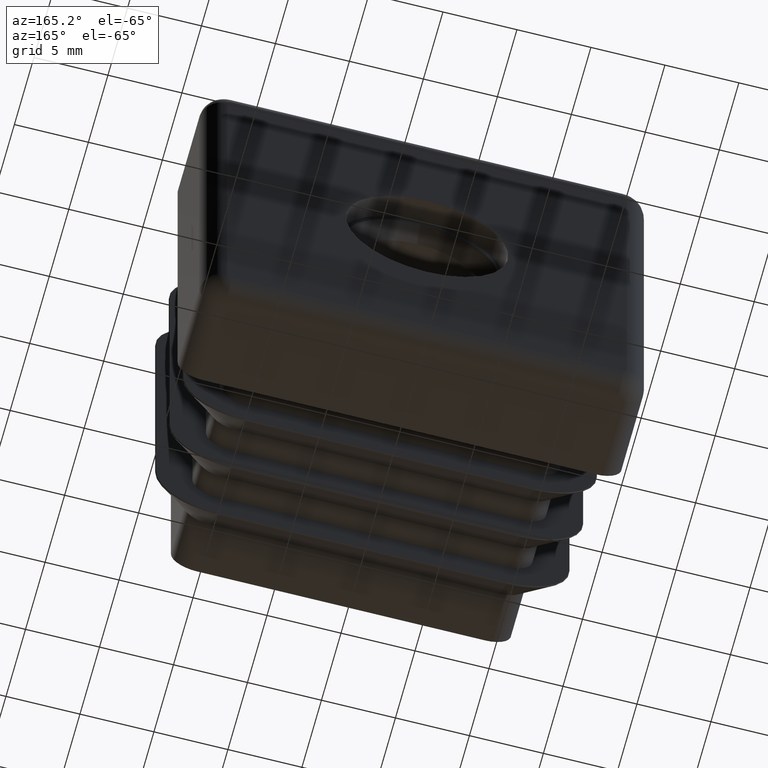
[diagram: clean part render]
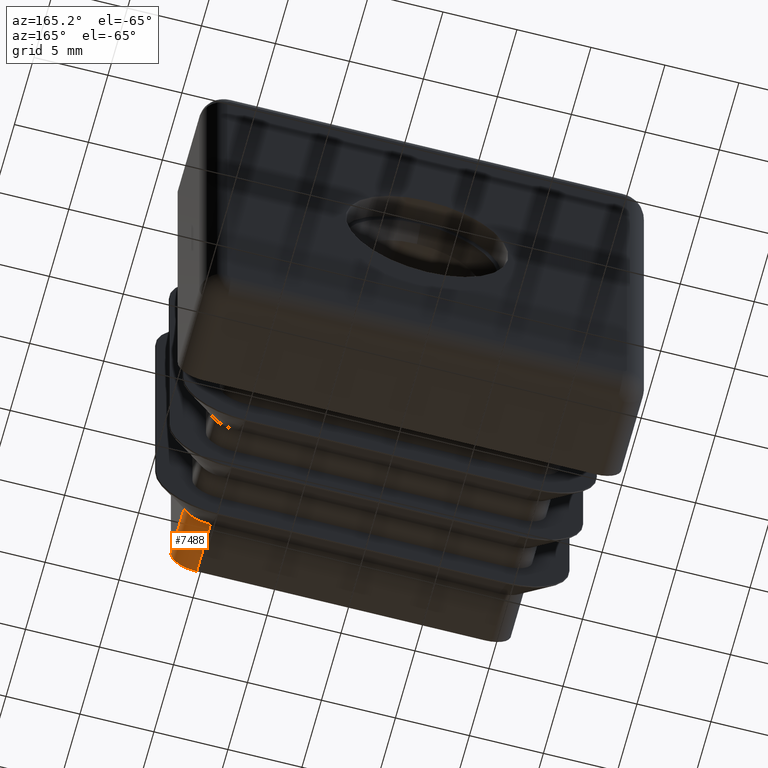
[diagram: same view with one face highlighted and labeled with its STEP entity id]
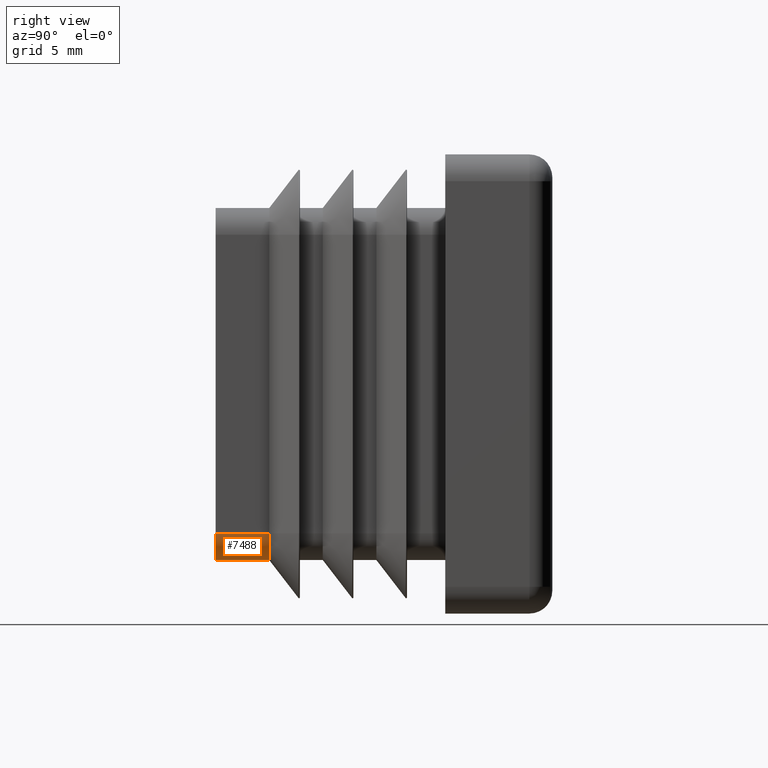
[diagram: same view with one face highlighted and labeled with its STEP entity id]
A machine part, auxiliary view. The second image highlights one B-rep face of the part: STEP entity #7488.
A second angle (right view) of the same face is appended — the face is thin or edge-on in the first view.
In plain terms, the highlighted cylindrical surface (edge-blend (fillet) strip) has radius 1.75 mm, axis along (0, 1, 0).
Its self-contained STEP definition (entity closure, byte-faithful):
#247 = VECTOR ( 'NONE', #4320, 1000.000000000000000 ) ;
#1490 = CIRCLE ( 'NONE', #14816, 1.749999999999999778 ) ;
#1756 = DIRECTION ( 'NONE',  ( 0.000000000000000000, 0.000000000000000000, 1.000000000000000000 ) ) ;
#2314 = EDGE_CURVE ( 'NONE', #16516, #7050, #6566, .T. ) ;
#2528 = CARTESIAN_POINT ( 'NONE',  ( 9.750000000000000000, -15.00000000000000000, -9.749999999999998224 ) ) ;
#2967 = EDGE_CURVE ( 'NONE', #4185, #18246, #21786, .T. ) ;
#3545 = DIRECTION ( 'NONE',  ( 0.000000000000000000, 1.000000000000000000, 0.000000000000000000 ) ) ;
#4185 = VERTEX_POINT ( 'NONE', #11204 ) ;
#4236 = CARTESIAN_POINT ( 'NONE',  ( 9.749999999999998224, -15.00000000000000000, -11.49999999999999822 ) ) ;
#4320 = DIRECTION ( 'NONE',  ( -0.000000000000000000, -1.000000000000000000, -0.000000000000000000 ) ) ;
#4350 = EDGE_LOOP ( 'NONE', ( #18101, #20176, #5473, #21862 ) ) ;
#4405 = DIRECTION ( 'NONE',  ( 0.000000000000000000, 1.000000000000000000, 0.000000000000000000 ) ) ;
#5189 = FACE_OUTER_BOUND ( 'NONE', #4350, .T. ) ;
#5473 = ORIENTED_EDGE ( 'NONE', *, *, #6452, .F. ) ;
#6452 = EDGE_CURVE ( 'NONE', #18246, #16516, #1490, .T. ) ;
#6566 = LINE ( 'NONE', #15862, #18499 ) ;
#6994 = CARTESIAN_POINT ( 'NONE',  ( 11.50000000000000000, -11.49999999999999822, -9.749999999999998224 ) ) ;
#7050 = VERTEX_POINT ( 'NONE', #6994 ) ;
#7317 = CYLINDRICAL_SURFACE ( 'NONE', #9832, 1.749999999999999778 ) ;
#7488 = ADVANCED_FACE ( 'NONE', ( #5189 ), #7317, .T. ) ;
#8754 = CIRCLE ( 'NONE', #19330, 1.749999999999998002 ) ;
#8878 = CARTESIAN_POINT ( 'NONE',  ( 9.750000000000000000, -15.00000000000000000, -9.749999999999998224 ) ) ;
#9545 = DIRECTION ( 'NONE',  ( -9.912705577010338368E-16, 0.000000000000000000, -1.000000000000000000 ) ) ;
#9832 = AXIS2_PLACEMENT_3D ( 'NONE', #8878, #3545, #1756 ) ;
#11204 = CARTESIAN_POINT ( 'NONE',  ( 9.749999999999998224, -11.49999999999999822, -11.49999999999999822 ) ) ;
#12923 = CARTESIAN_POINT ( 'NONE',  ( 9.749999999999998224, -15.00000000000000000, -11.49999999999999822 ) ) ;
#13779 = CARTESIAN_POINT ( 'NONE',  ( 11.50000000000000000, -15.00000000000000000, -9.749999999999998224 ) ) ;
#14643 = DIRECTION ( 'NONE',  ( 0.000000000000000000, 0.000000000000000000, -1.000000000000000000 ) ) ;
#14816 = AXIS2_PLACEMENT_3D ( 'NONE', #2528, #17972, #14643 ) ;
#15862 = CARTESIAN_POINT ( 'NONE',  ( 11.50000000000000000, -15.00000000000000000, -9.749999999999998224 ) ) ;
#16225 = CARTESIAN_POINT ( 'NONE',  ( 9.750000000000000000, -11.50000000000000000, -9.749999999999998224 ) ) ;
#16516 = VERTEX_POINT ( 'NONE', #13779 ) ;
#17972 = DIRECTION ( 'NONE',  ( 0.000000000000000000, -1.000000000000000000, 0.000000000000000000 ) ) ;
#18101 = ORIENTED_EDGE ( 'NONE', *, *, #18683, .T. ) ;
#18246 = VERTEX_POINT ( 'NONE', #12923 ) ;
#18499 = VECTOR ( 'NONE', #4405, 1000.000000000000000 ) ;
#18683 = EDGE_CURVE ( 'NONE', #4185, #7050, #8754, .T. ) ;
#19330 = AXIS2_PLACEMENT_3D ( 'NONE', #16225, #21357, #9545 ) ;
#20176 = ORIENTED_EDGE ( 'NONE', *, *, #2314, .F. ) ;
#21357 = DIRECTION ( 'NONE',  ( -0.000000000000000000, -1.000000000000000000, -0.000000000000000000 ) ) ;
#21786 = LINE ( 'NONE', #4236, #247 ) ;
#21862 = ORIENTED_EDGE ( 'NONE', *, *, #2967, .F. ) ;